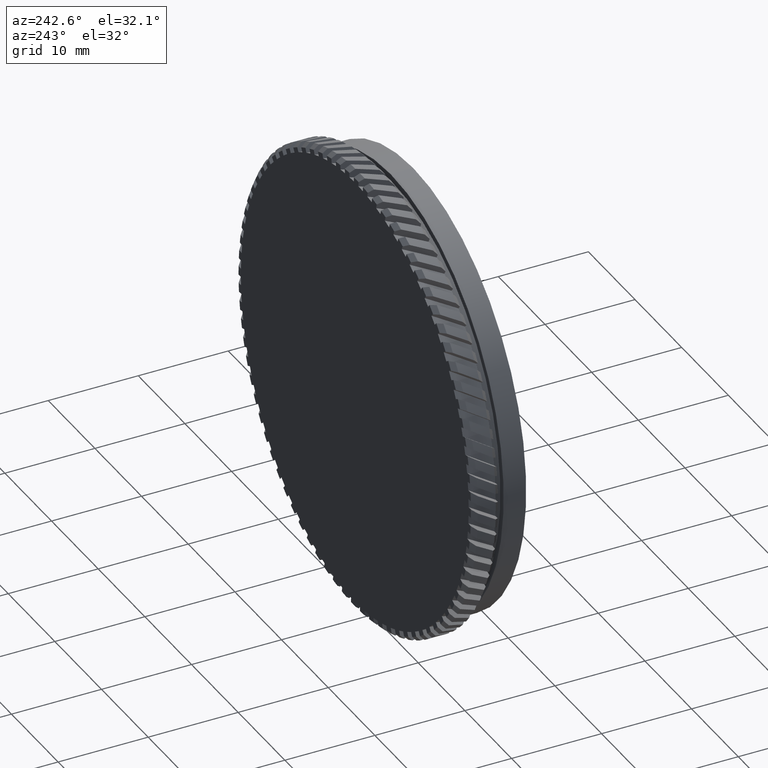
[diagram: clean part render]
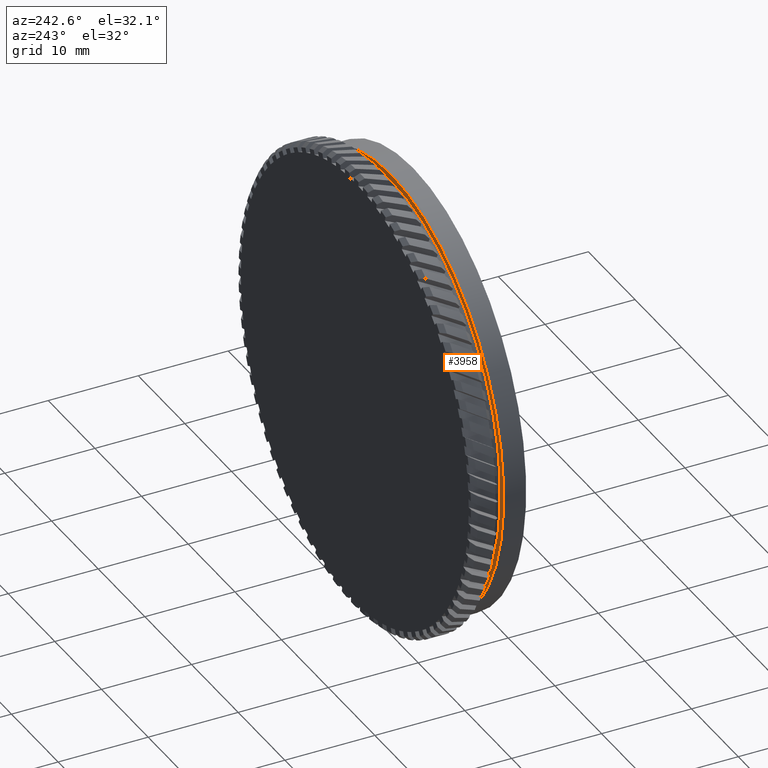
[diagram: same view with one face highlighted and labeled with its STEP entity id]
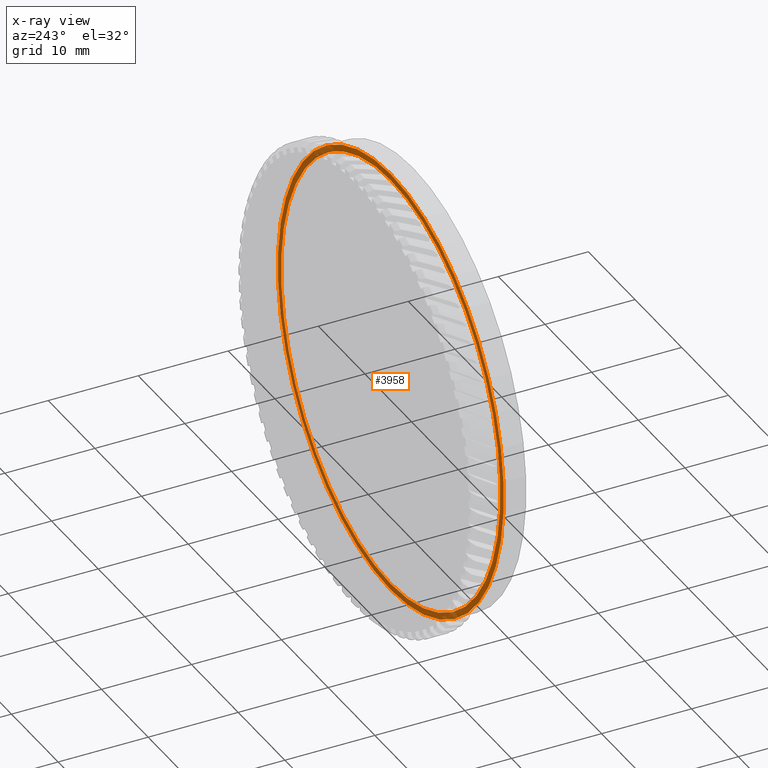
[diagram: x-ray of the same camera — body ghosted, the highlighted face saturated]
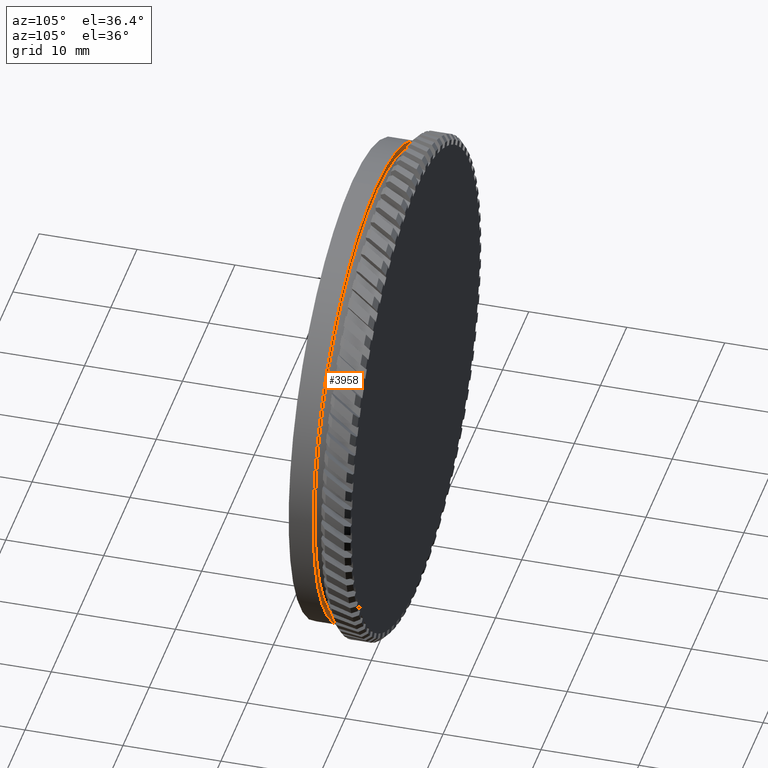
[diagram: same view with one face highlighted and labeled with its STEP entity id]
A machine part, auxiliary view. The second image highlights one B-rep face of the part: STEP entity #3958.
The next image is the same camera in x-ray: the body ghosted, the highlighted face saturated — about 52% of this face is hidden behind the body in this view.
A second angle (auxiliary view) of the same face is appended — the face is thin or edge-on in the first view.
In plain terms, the highlighted planar face has unit normal (0, -1, 0).
Its self-contained STEP definition (entity closure, byte-faithful):
#123 = VERTEX_POINT ( 'NONE', #11528 ) ;
#283 = CARTESIAN_POINT ( 'NONE',  ( 0.0000000000000000000, 17.87125740523061500, 0.0000000000000000000 ) ) ;
#606 = AXIS2_PLACEMENT_3D ( 'NONE', #8344, #13055, #19357 ) ;
#742 = AXIS2_PLACEMENT_3D ( 'NONE', #13081, #14802, #19453 ) ;
#2842 = VERTEX_POINT ( 'NONE', #18041 ) ;
#3610 = FACE_OUTER_BOUND ( 'NONE', #11681, .T. ) ;
#3718 = EDGE_CURVE ( 'NONE', #123, #6920, #15998, .T. ) ;
#3958 = ADVANCED_FACE ( 'NONE', ( #10558, #3610 ), #19754, .F. ) ;
#4758 = AXIS2_PLACEMENT_3D ( 'NONE', #10199, #11920, #7190 ) ;
#6118 = DIRECTION ( 'NONE',  ( 0.0000000000000000000, 0.0000000000000000000, 1.000000000000000000 ) ) ;
#6920 = VERTEX_POINT ( 'NONE', #7997 ) ;
#7190 = DIRECTION ( 'NONE',  ( 0.0000000000000000000, -0.0000000000000000000, -1.000000000000000000 ) ) ;
#7997 = CARTESIAN_POINT ( 'NONE',  ( 0.0000000000000000000, 17.87125740523061500, 24.20000000000000600 ) ) ;
#8122 = ORIENTED_EDGE ( 'NONE', *, *, #12584, .F. ) ;
#8344 = CARTESIAN_POINT ( 'NONE',  ( 0.0000000000000000000, 17.87125740523061500, 0.0000000000000000000 ) ) ;
#9632 = AXIS2_PLACEMENT_3D ( 'NONE', #283, #12675, #12755 ) ;
#9695 = CIRCLE ( 'NONE', #10766, 23.50000000000000700 ) ;
#10199 = CARTESIAN_POINT ( 'NONE',  ( 23.50000000000000700, 17.87125740523061900, 0.0000000000000000000 ) ) ;
#10558 = FACE_BOUND ( 'NONE', #19643, .T. ) ;
#10766 = AXIS2_PLACEMENT_3D ( 'NONE', #15457, #15260, #6118 ) ;
#11087 = CARTESIAN_POINT ( 'NONE',  ( 0.0000000000000000000, 17.87125740523061500, 23.50000000000000700 ) ) ;
#11528 = CARTESIAN_POINT ( 'NONE',  ( 2.963645253936595400E-015, 17.87125740523061500, -24.20000000000000600 ) ) ;
#11681 = EDGE_LOOP ( 'NONE', ( #17584, #14751 ) ) ;
#11920 = DIRECTION ( 'NONE',  ( 0.0000000000000000000, -1.000000000000000000, 0.0000000000000000000 ) ) ;
#12499 = CIRCLE ( 'NONE', #606, 23.50000000000000700 ) ;
#12584 = EDGE_CURVE ( 'NONE', #17571, #2842, #9695, .T. ) ;
#12675 = DIRECTION ( 'NONE',  ( -0.0000000000000000000, 1.000000000000000000, -0.0000000000000000000 ) ) ;
#12755 = DIRECTION ( 'NONE',  ( 0.0000000000000000000, 0.0000000000000000000, 1.000000000000000000 ) ) ;
#13055 = DIRECTION ( 'NONE',  ( -0.0000000000000000000, 1.000000000000000000, -0.0000000000000000000 ) ) ;
#13081 = CARTESIAN_POINT ( 'NONE',  ( 0.0000000000000000000, 17.87125740523061500, 0.0000000000000000000 ) ) ;
#14751 = ORIENTED_EDGE ( 'NONE', *, *, #3718, .T. ) ;
#14802 = DIRECTION ( 'NONE',  ( -0.0000000000000000000, 1.000000000000000000, -0.0000000000000000000 ) ) ;
#15260 = DIRECTION ( 'NONE',  ( -0.0000000000000000000, 1.000000000000000000, -0.0000000000000000000 ) ) ;
#15457 = CARTESIAN_POINT ( 'NONE',  ( 0.0000000000000000000, 17.87125740523061500, 0.0000000000000000000 ) ) ;
#15509 = ORIENTED_EDGE ( 'NONE', *, *, #16199, .F. ) ;
#15998 = CIRCLE ( 'NONE', #9632, 24.20000000000000600 ) ;
#16199 = EDGE_CURVE ( 'NONE', #2842, #17571, #12499, .T. ) ;
#17571 = VERTEX_POINT ( 'NONE', #11087 ) ;
#17584 = ORIENTED_EDGE ( 'NONE', *, *, #17669, .T. ) ;
#17669 = EDGE_CURVE ( 'NONE', #6920, #123, #18156, .T. ) ;
#18041 = CARTESIAN_POINT ( 'NONE',  ( 2.877919977996281100E-015, 17.87125740523061500, -23.50000000000000700 ) ) ;
#18156 = CIRCLE ( 'NONE', #742, 24.20000000000000600 ) ;
#19357 = DIRECTION ( 'NONE',  ( 0.0000000000000000000, 0.0000000000000000000, 1.000000000000000000 ) ) ;
#19453 = DIRECTION ( 'NONE',  ( 0.0000000000000000000, 0.0000000000000000000, 1.000000000000000000 ) ) ;
#19643 = EDGE_LOOP ( 'NONE', ( #8122, #15509 ) ) ;
#19754 = PLANE ( 'NONE',  #4758 ) ;